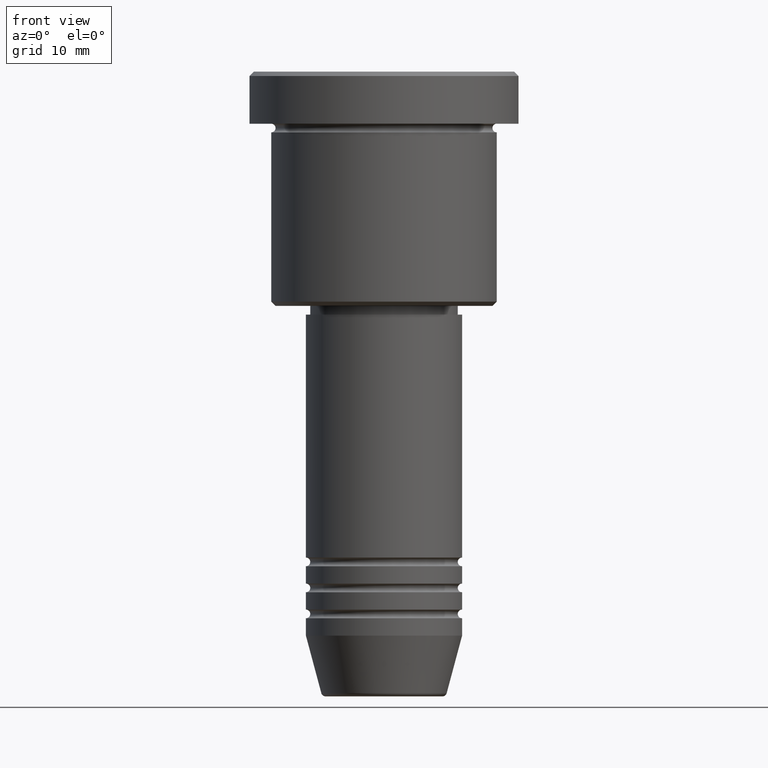
[diagram: clean part render]
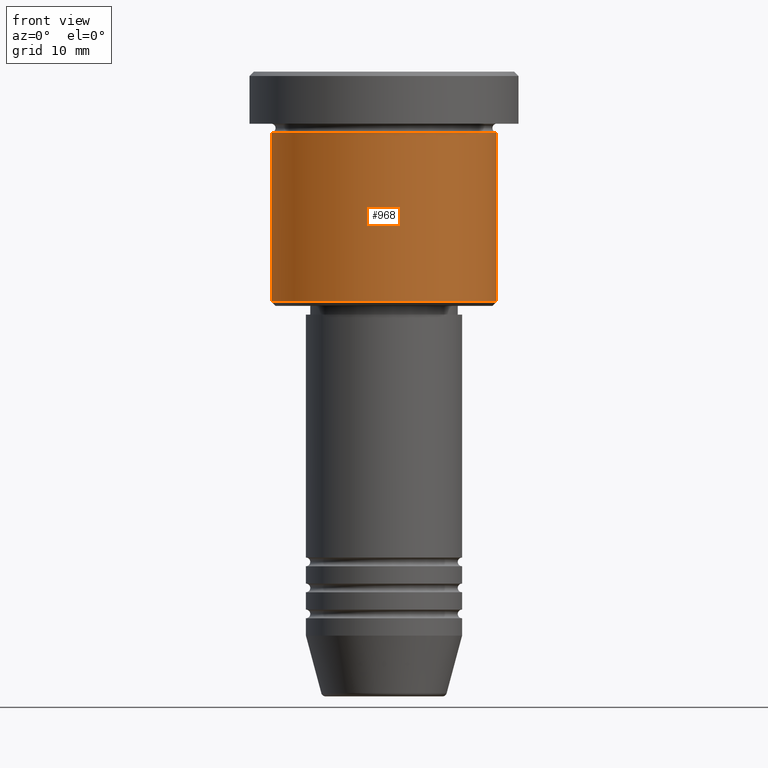
[diagram: same view with one face highlighted and labeled with its STEP entity id]
A machine part, front view. The second image highlights one B-rep face of the part: STEP entity #968.
In plain terms, the highlighted cylindrical surface (partial cylindrical patch) has radius 13 mm, axis along (-0, -0, 1).
Its self-contained STEP definition (entity closure, byte-faithful):
#10 = EDGE_CURVE ( 'NONE', #404, #447, #928, .T. ) ;
#44 = EDGE_LOOP ( 'NONE', ( #869, #354, #1014, #563 ) ) ;
#102 = LINE ( 'NONE', #449, #537 ) ;
#118 = DIRECTION ( 'NONE',  ( -1.000000000000000000, 0.000000000000000000, 0.000000000000000000 ) ) ;
#134 = CARTESIAN_POINT ( 'NONE',  ( 0.000000000000000000, 0.000000000000000000, -26.49999999999998224 ) ) ;
#170 = CIRCLE ( 'NONE', #1103, 13.00000000000000000 ) ;
#179 = DIRECTION ( 'NONE',  ( -0.000000000000000000, -0.000000000000000000, 1.000000000000000000 ) ) ;
#206 = EDGE_CURVE ( 'NONE', #337, #404, #364, .T. ) ;
#237 = FACE_OUTER_BOUND ( 'NONE', #44, .T. ) ;
#301 = DIRECTION ( 'NONE',  ( -0.000000000000000000, -0.000000000000000000, 1.000000000000000000 ) ) ;
#337 = VERTEX_POINT ( 'NONE', #471 ) ;
#354 = ORIENTED_EDGE ( 'NONE', *, *, #370, .T. ) ;
#364 = LINE ( 'NONE', #1171, #457 ) ;
#370 = EDGE_CURVE ( 'NONE', #337, #598, #170, .T. ) ;
#372 = DIRECTION ( 'NONE',  ( -0.000000000000000000, -0.000000000000000000, 1.000000000000000000 ) ) ;
#404 = VERTEX_POINT ( 'NONE', #504 ) ;
#447 = VERTEX_POINT ( 'NONE', #848 ) ;
#449 = CARTESIAN_POINT ( 'NONE',  ( 13.00000000000000000, 0.000000000000000000, 0.000000000000000000 ) ) ;
#457 = VECTOR ( 'NONE', #372, 1000.000000000000000 ) ;
#471 = CARTESIAN_POINT ( 'NONE',  ( -13.00000000000000000, 1.592040838891559095E-15, -26.49999999999998224 ) ) ;
#502 = AXIS2_PLACEMENT_3D ( 'NONE', #853, #600, #1157 ) ;
#504 = CARTESIAN_POINT ( 'NONE',  ( -13.00000000000000000, 1.592040838891559095E-15, -6.999999999999995559 ) ) ;
#537 = VECTOR ( 'NONE', #179, 1000.000000000000000 ) ;
#563 = ORIENTED_EDGE ( 'NONE', *, *, #10, .F. ) ;
#587 = CARTESIAN_POINT ( 'NONE',  ( 0.000000000000000000, 0.000000000000000000, -6.999999999999995559 ) ) ;
#598 = VERTEX_POINT ( 'NONE', #772 ) ;
#600 = DIRECTION ( 'NONE',  ( -0.000000000000000000, -0.000000000000000000, 1.000000000000000000 ) ) ;
#610 = AXIS2_PLACEMENT_3D ( 'NONE', #587, #1132, #1115 ) ;
#712 = EDGE_CURVE ( 'NONE', #598, #447, #102, .T. ) ;
#772 = CARTESIAN_POINT ( 'NONE',  ( 13.00000000000000000, 0.000000000000000000, -26.49999999999998224 ) ) ;
#848 = CARTESIAN_POINT ( 'NONE',  ( 13.00000000000000000, 0.000000000000000000, -6.999999999999995559 ) ) ;
#853 = CARTESIAN_POINT ( 'NONE',  ( 0.000000000000000000, 0.000000000000000000, 0.000000000000000000 ) ) ;
#869 = ORIENTED_EDGE ( 'NONE', *, *, #206, .F. ) ;
#928 = CIRCLE ( 'NONE', #610, 13.00000000000000000 ) ;
#958 = CYLINDRICAL_SURFACE ( 'NONE', #502, 13.00000000000000000 ) ;
#968 = ADVANCED_FACE ( 'NONE', ( #237 ), #958, .T. ) ;
#1014 = ORIENTED_EDGE ( 'NONE', *, *, #712, .T. ) ;
#1103 = AXIS2_PLACEMENT_3D ( 'NONE', #134, #301, #118 ) ;
#1115 = DIRECTION ( 'NONE',  ( 1.000000000000000000, 0.000000000000000000, 0.000000000000000000 ) ) ;
#1132 = DIRECTION ( 'NONE',  ( -0.000000000000000000, -0.000000000000000000, 1.000000000000000000 ) ) ;
#1157 = DIRECTION ( 'NONE',  ( 1.000000000000000000, 0.000000000000000000, 0.000000000000000000 ) ) ;
#1171 = CARTESIAN_POINT ( 'NONE',  ( -13.00000000000000000, 1.592040838891559095E-15, 0.000000000000000000 ) ) ;